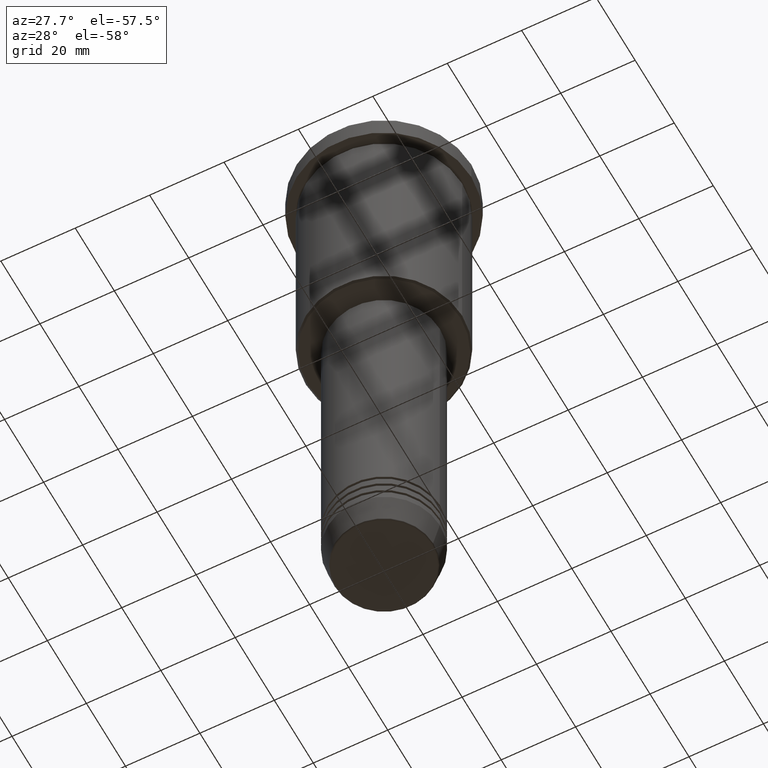
[diagram: clean part render]
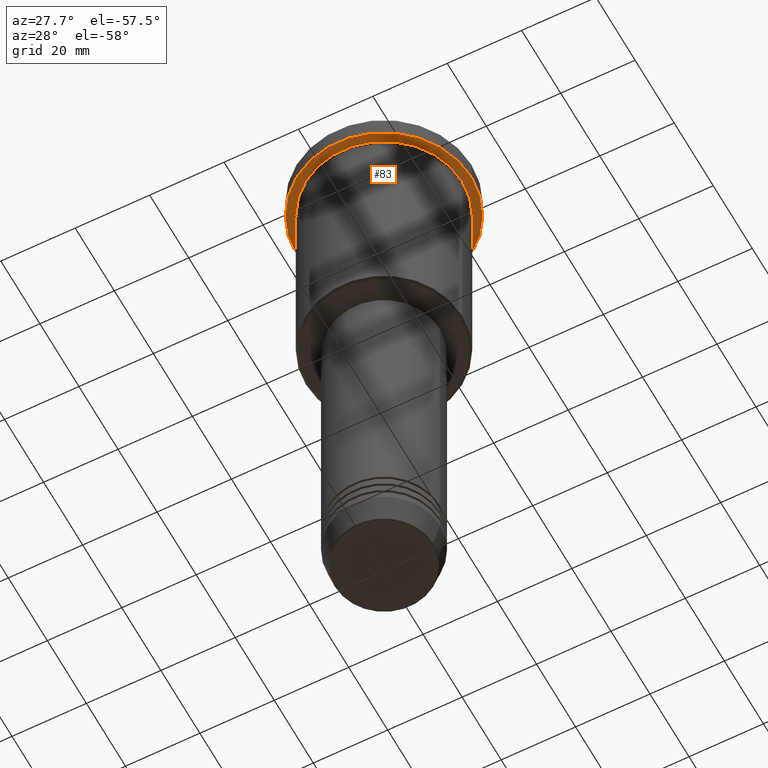
[diagram: same view with one face highlighted and labeled with its STEP entity id]
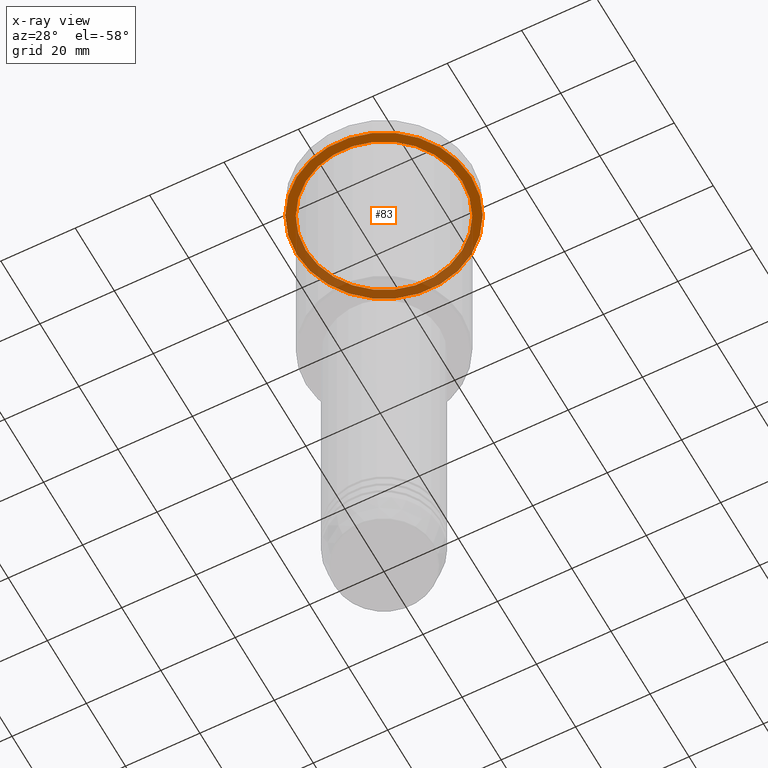
[diagram: x-ray of the same camera — body ghosted, the highlighted face saturated]
A machine part, auxiliary view. The second image highlights one B-rep face of the part: STEP entity #83.
The next image is the same camera in x-ray: the body ghosted, the highlighted face saturated — about 39% of this face is hidden behind the body in this view.
In plain terms, the highlighted planar face has unit normal (0, 0, -1).
Its self-contained STEP definition (entity closure, byte-faithful):
#14 = CARTESIAN_POINT ( 'NONE',  ( 0.000000000000000000, 0.000000000000000000, -5.999999999999994671 ) ) ;
#17 = EDGE_LOOP ( 'NONE', ( #174, #1005 ) ) ;
#83 = ADVANCED_FACE ( 'NONE', ( #935, #194 ), #582, .T. ) ;
#93 = DIRECTION ( 'NONE',  ( 1.000000000000000000, 0.000000000000000000, 0.000000000000000000 ) ) ;
#95 = CARTESIAN_POINT ( 'NONE',  ( -23.50000000000000000, 2.877919977996280320E-15, -5.999999999999994671 ) ) ;
#118 = CIRCLE ( 'NONE', #1057, 21.00000000000000000 ) ;
#120 = AXIS2_PLACEMENT_3D ( 'NONE', #612, #150, #429 ) ;
#150 = DIRECTION ( 'NONE',  ( 0.000000000000000000, 0.000000000000000000, -1.000000000000000000 ) ) ;
#152 = VERTEX_POINT ( 'NONE', #95 ) ;
#156 = DIRECTION ( 'NONE',  ( -0.000000000000000000, -0.000000000000000000, 1.000000000000000000 ) ) ;
#162 = EDGE_LOOP ( 'NONE', ( #644, #265 ) ) ;
#174 = ORIENTED_EDGE ( 'NONE', *, *, #773, .T. ) ;
#183 = DIRECTION ( 'NONE',  ( -0.000000000000000000, -0.000000000000000000, 1.000000000000000000 ) ) ;
#194 = FACE_OUTER_BOUND ( 'NONE', #162, .T. ) ;
#206 = CIRCLE ( 'NONE', #729, 23.50000000000000000 ) ;
#265 = ORIENTED_EDGE ( 'NONE', *, *, #944, .F. ) ;
#394 = VERTEX_POINT ( 'NONE', #832 ) ;
#399 = VERTEX_POINT ( 'NONE', #1174 ) ;
#429 = DIRECTION ( 'NONE',  ( -1.000000000000000000, 0.000000000000000000, -0.000000000000000000 ) ) ;
#456 = DIRECTION ( 'NONE',  ( -0.000000000000000000, -0.000000000000000000, 1.000000000000000000 ) ) ;
#458 = EDGE_CURVE ( 'NONE', #394, #399, #118, .T. ) ;
#528 = AXIS2_PLACEMENT_3D ( 'NONE', #759, #456, #678 ) ;
#551 = VERTEX_POINT ( 'NONE', #862 ) ;
#562 = CARTESIAN_POINT ( 'NONE',  ( 0.000000000000000000, 0.000000000000000000, -5.999999999999994671 ) ) ;
#582 = PLANE ( 'NONE',  #120 ) ;
#612 = CARTESIAN_POINT ( 'NONE',  ( 0.000000000000000000, 23.50000000000000000, -5.999999999999994671 ) ) ;
#644 = ORIENTED_EDGE ( 'NONE', *, *, #886, .F. ) ;
#678 = DIRECTION ( 'NONE',  ( 1.000000000000000000, 0.000000000000000000, 0.000000000000000000 ) ) ;
#729 = AXIS2_PLACEMENT_3D ( 'NONE', #14, #183, #93 ) ;
#759 = CARTESIAN_POINT ( 'NONE',  ( 0.000000000000000000, 0.000000000000000000, -5.999999999999994671 ) ) ;
#773 = EDGE_CURVE ( 'NONE', #399, #394, #963, .T. ) ;
#832 = CARTESIAN_POINT ( 'NONE',  ( 21.00000000000000000, 2.571758278209441661E-15, -5.999999999999994671 ) ) ;
#862 = CARTESIAN_POINT ( 'NONE',  ( 23.50000000000000000, 0.000000000000000000, -5.999999999999994671 ) ) ;
#886 = EDGE_CURVE ( 'NONE', #551, #152, #1038, .T. ) ;
#905 = DIRECTION ( 'NONE',  ( -1.000000000000000000, 0.000000000000000000, 0.000000000000000000 ) ) ;
#935 = FACE_BOUND ( 'NONE', #17, .T. ) ;
#944 = EDGE_CURVE ( 'NONE', #152, #551, #206, .T. ) ;
#963 = CIRCLE ( 'NONE', #1146, 21.00000000000000000 ) ;
#1005 = ORIENTED_EDGE ( 'NONE', *, *, #458, .T. ) ;
#1007 = DIRECTION ( 'NONE',  ( -0.000000000000000000, -0.000000000000000000, 1.000000000000000000 ) ) ;
#1038 = CIRCLE ( 'NONE', #528, 23.50000000000000000 ) ;
#1057 = AXIS2_PLACEMENT_3D ( 'NONE', #562, #1007, #1113 ) ;
#1113 = DIRECTION ( 'NONE',  ( -1.000000000000000000, 0.000000000000000000, 0.000000000000000000 ) ) ;
#1146 = AXIS2_PLACEMENT_3D ( 'NONE', #1152, #156, #905 ) ;
#1152 = CARTESIAN_POINT ( 'NONE',  ( 0.000000000000000000, 0.000000000000000000, -5.999999999999994671 ) ) ;
#1174 = CARTESIAN_POINT ( 'NONE',  ( -21.00000000000000000, 0.000000000000000000, -5.999999999999994671 ) ) ;